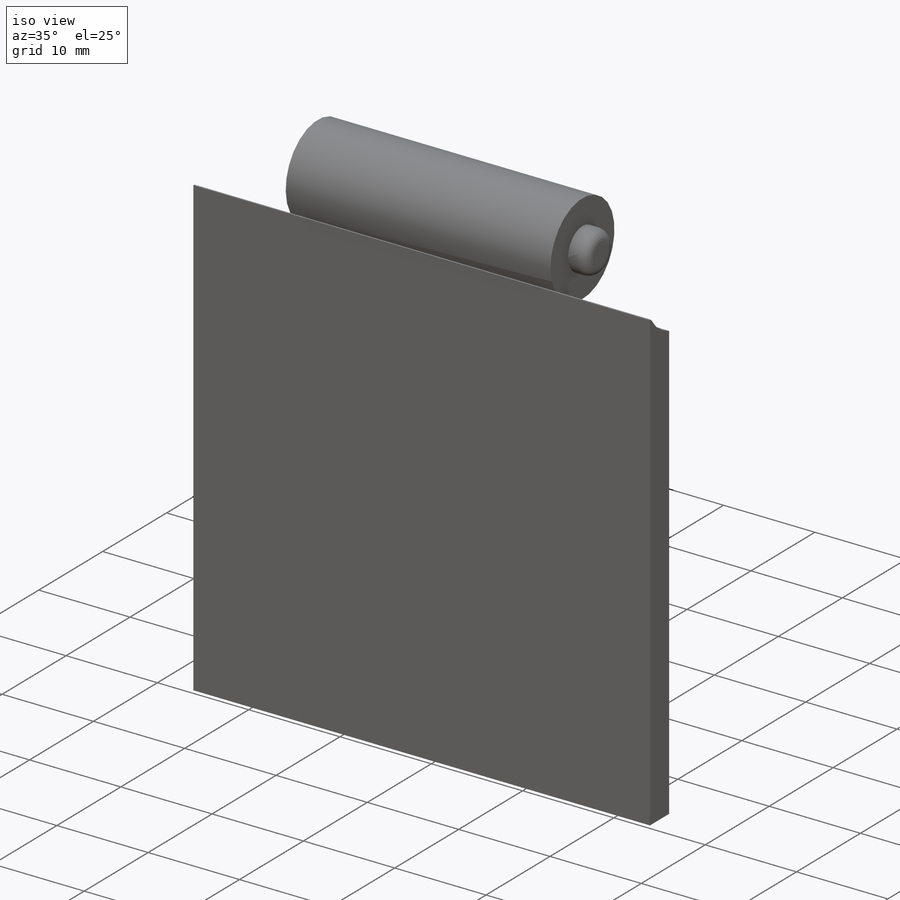
[diagram: iso view]
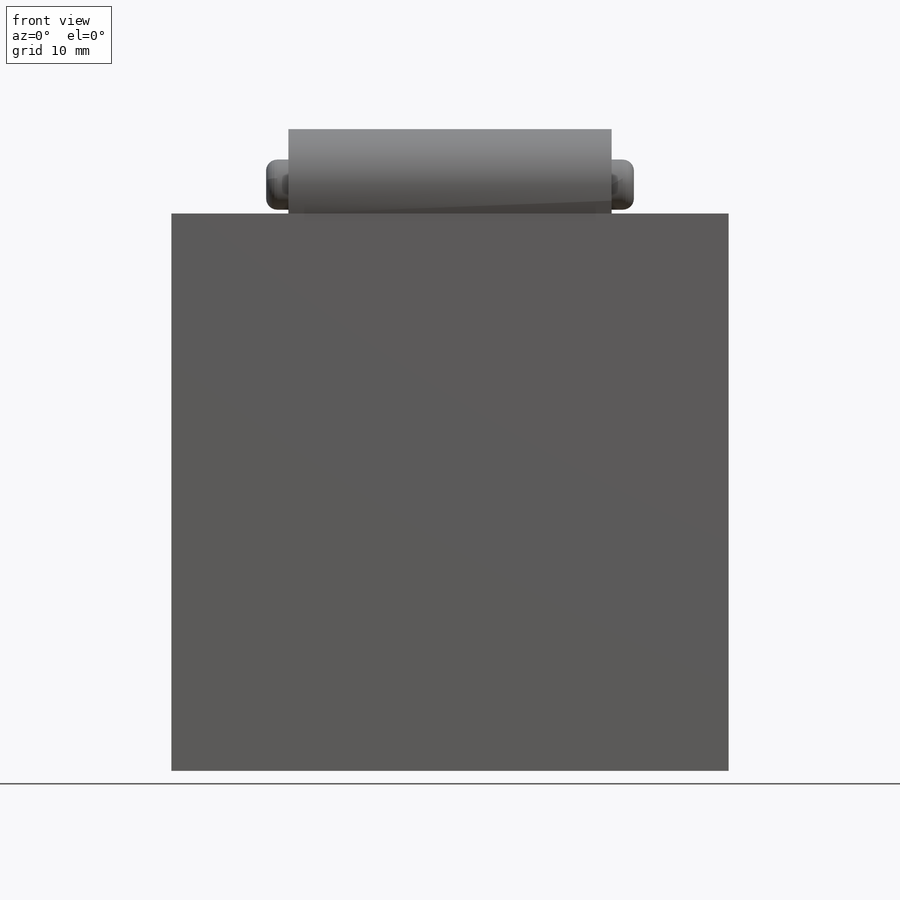
[diagram: front view]
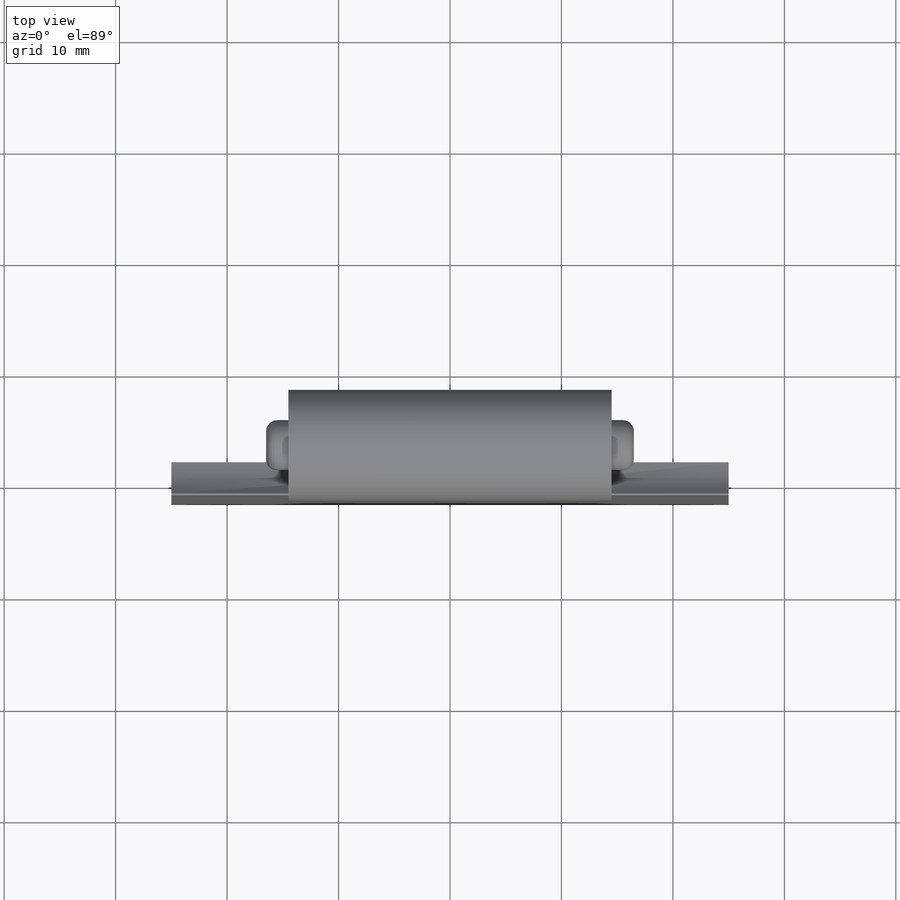
[diagram: top view]
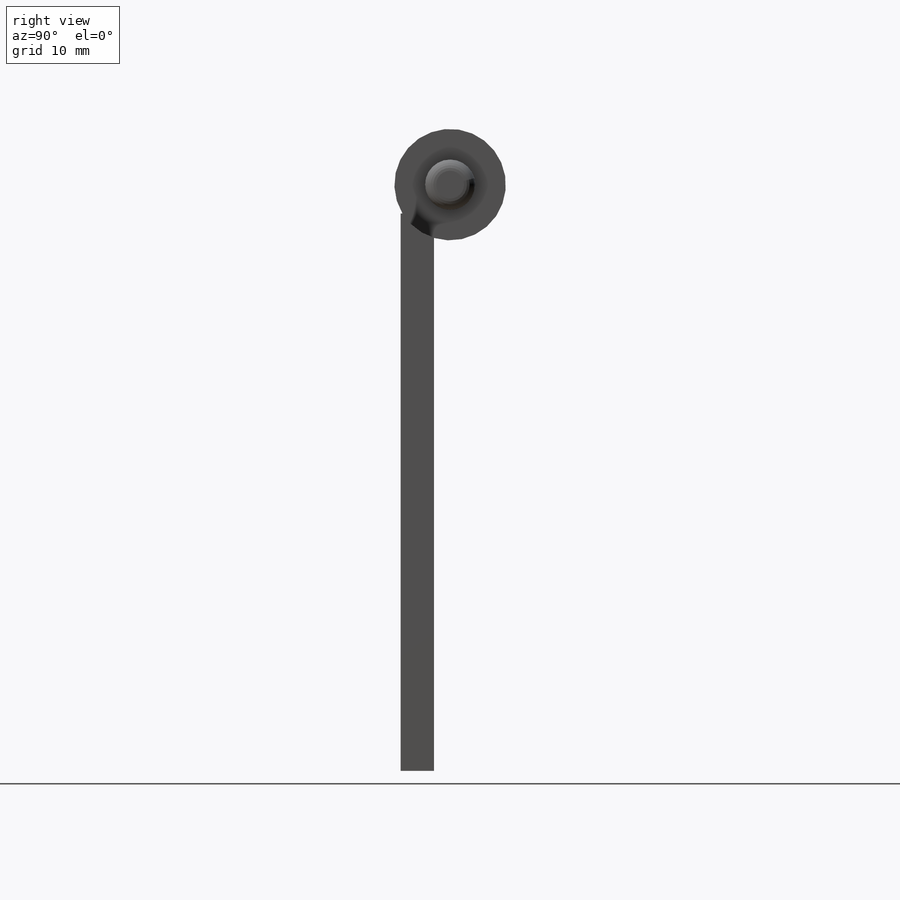
[diagram: right view]
SOLIDWORKS PART (.sldprt)
format: sldprt  version: not decoded by parser v0  size: 180,736 bytes
history: native  units: mm
features: sketch x4, extrude x3, mirror x2, material x1, fillet x1, cut_extrude x1 (+13 scaffold rows collapsed)
feature tree (25):
  scaffold x13  (default folders/planes/origin — collapsed)
  material  "Material <not specified>"
  sketch  "Sketch1"  dims[D1=3.0mm D2=50.0mm]
  extrude  "Boss-Extrude1"  Depth=50mm
  sketch  "Sketch2"  dims[D1=~2.168531mm]
  extrude  "Boss-Extrude2"  Depth=14.5mm
  sketch  "Sketch3"  dims[D1=~1.449884mm]
  extrude  "Boss-Extrude3"  Depth=2mm
  fillet  "Fillet2"  Radius=1mm
  mirror  "Mirror1"
  sketch  "Sketch4"  dims[D1=0.0mm]
  cut_extrude  "Cut-Extrude1"  [1 undecoded]
  mirror  "Mirror2"
decode coverage: 8 of 11 modeling features carry decoded parameters
note: ~ marks probable driven/reference dimensions
note: 1 parameter value undecoded
note: suppression state not decoded; provenance and decode notes live in map.json
